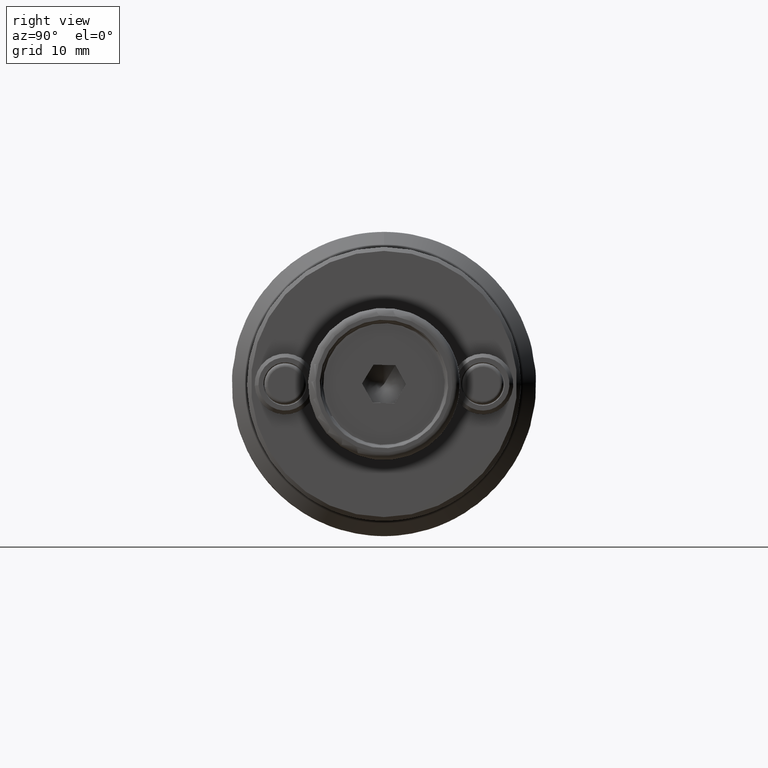
[diagram: clean part render]
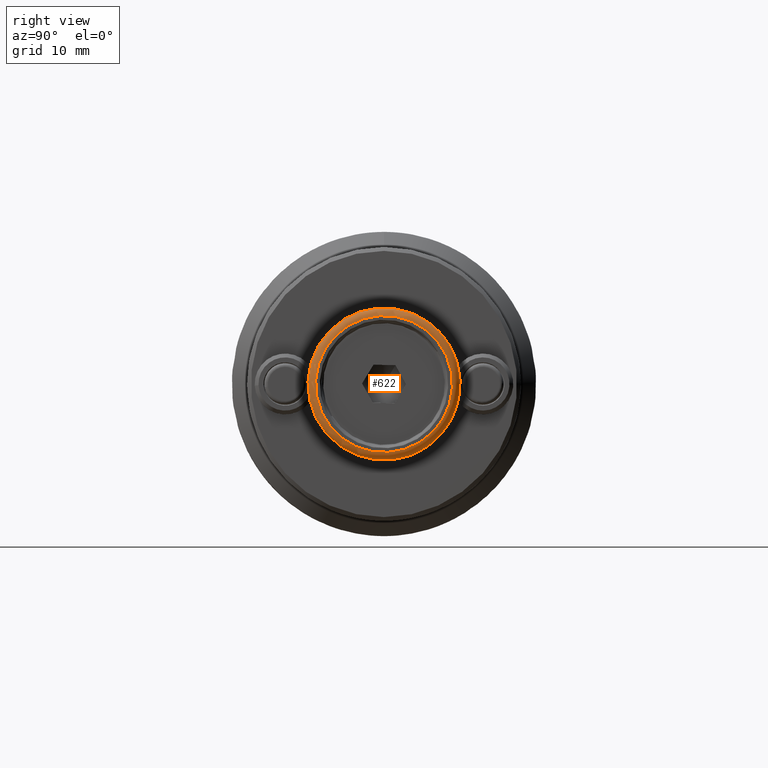
[diagram: same view with one face highlighted and labeled with its STEP entity id]
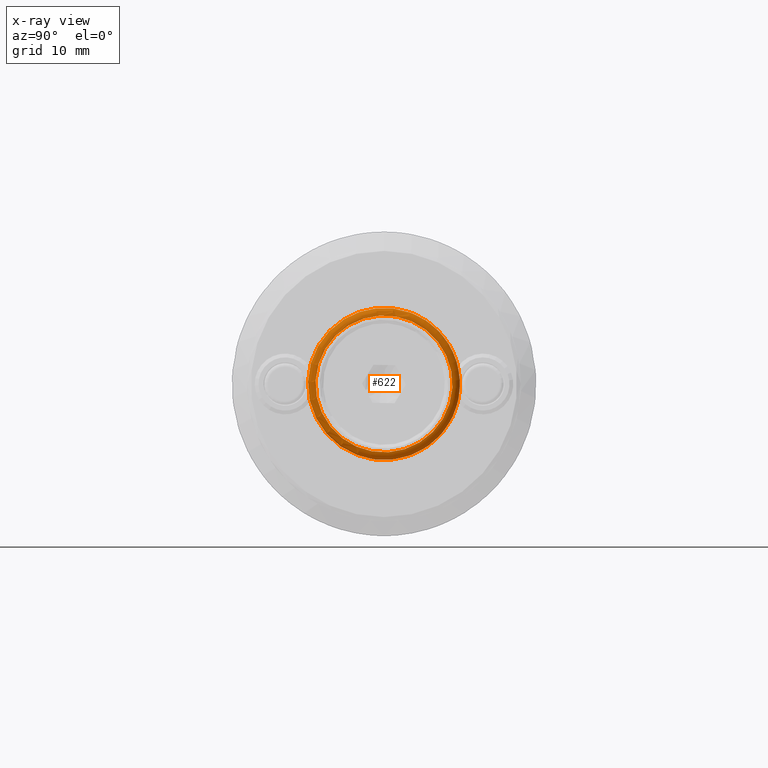
[diagram: x-ray of the same camera — body ghosted, the highlighted face saturated]
A machine part, right view. The second image highlights one B-rep face of the part: STEP entity #622.
The next image is the same camera in x-ray: the body ghosted, the highlighted face saturated — about 0% of this face is hidden behind the body in this view.
In plain terms, the highlighted toroidal blend (fillet) surface has major radius 9 mm and minor (blend) radius 1 mm.
Its self-contained STEP definition (entity closure, byte-faithful):
#622 = ADVANCED_FACE( '', ( #1291, #1292 ), #1293, .T. );
#1291 = FACE_OUTER_BOUND( '', #1962, .T. );
#1292 = FACE_OUTER_BOUND( '', #1963, .T. );
#1293 = TOROIDAL_SURFACE( '', #1964, 9.00000000000000, 1.00000000000000 );
#1962 = EDGE_LOOP( '', ( #3179 ) );
#1963 = EDGE_LOOP( '', ( #3180 ) );
#1964 = AXIS2_PLACEMENT_3D( '', #3181, #3182, #3183 );
#3179 = ORIENTED_EDGE( '', *, *, #3810, .F. );
#3180 = ORIENTED_EDGE( '', *, *, #3839, .F. );
#3181 = CARTESIAN_POINT( '', ( 2.00000000000000, 0.000000000000000, -1.73472347597680E-015 ) );
#3182 = DIRECTION( '', ( -1.00000000000000, 6.12303176911189E-017, 0.000000000000000 ) );
#3183 = DIRECTION( '', ( -6.12303176911189E-017, -1.00000000000000, 0.000000000000000 ) );
#3810 = EDGE_CURVE( '', #4505, #4505, #4506, .F. );
#3839 = EDGE_CURVE( '', #4538, #4538, #4539, .T. );
#4505 = VERTEX_POINT( '', #5932 );
#4506 = CIRCLE( '', #5933, 9.00000000000000 );
#4538 = VERTEX_POINT( '', #6014 );
#4539 = CIRCLE( '', #6015, 10.0000000000000 );
#5932 = CARTESIAN_POINT( '', ( 3.00000000000000, -9.00000000000000, -1.73472347597680E-015 ) );
#5933 = AXIS2_PLACEMENT_3D( '', #6566, #6567, #6568 );
#6014 = CARTESIAN_POINT( '', ( 2.00000000000000, -10.0000000000000, -1.73472347597680E-015 ) );
#6015 = AXIS2_PLACEMENT_3D( '', #6585, #6586, #6587 );
#6566 = CARTESIAN_POINT( '', ( 3.00000000000000, -6.12303176911189E-017, -1.73472347597680E-015 ) );
#6567 = DIRECTION( '', ( -1.00000000000000, 6.12303176911189E-017, 0.000000000000000 ) );
#6568 = DIRECTION( '', ( -6.12303176911189E-017, -1.00000000000000, 0.000000000000000 ) );
#6585 = CARTESIAN_POINT( '', ( 2.00000000000000, 0.000000000000000, -1.73472347597680E-015 ) );
#6586 = DIRECTION( '', ( -1.00000000000000, 6.12303176911189E-017, 0.000000000000000 ) );
#6587 = DIRECTION( '', ( -6.12303176911189E-017, -1.00000000000000, 0.000000000000000 ) );